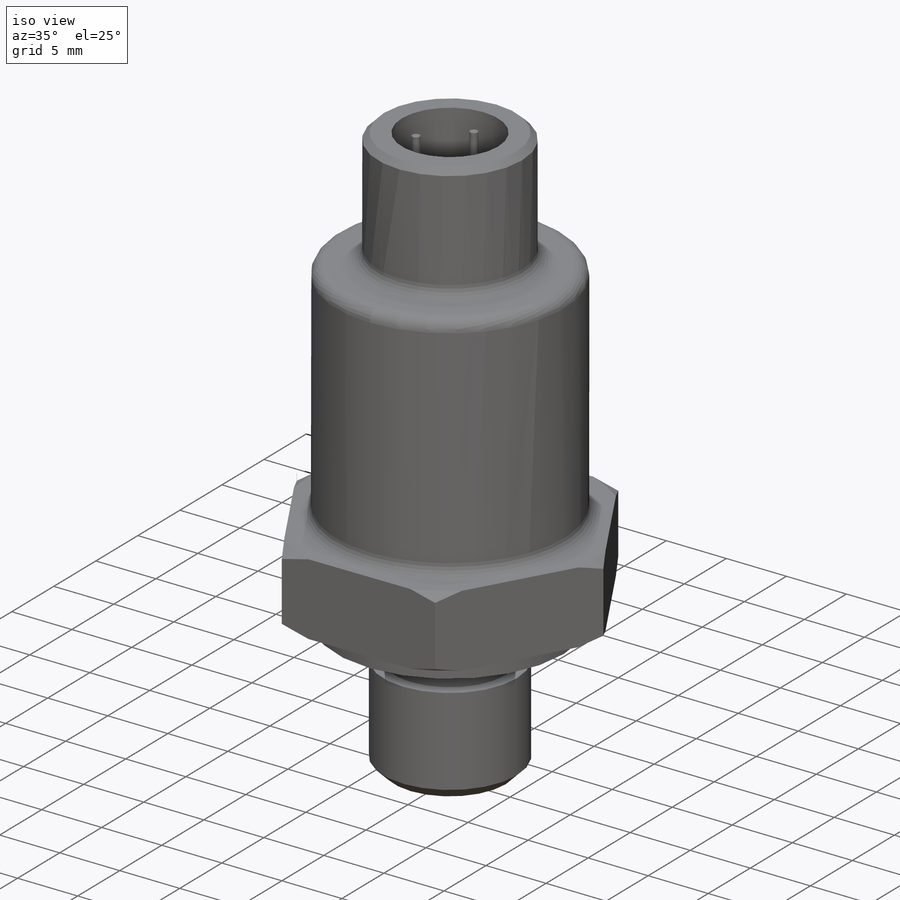
[diagram: iso view]
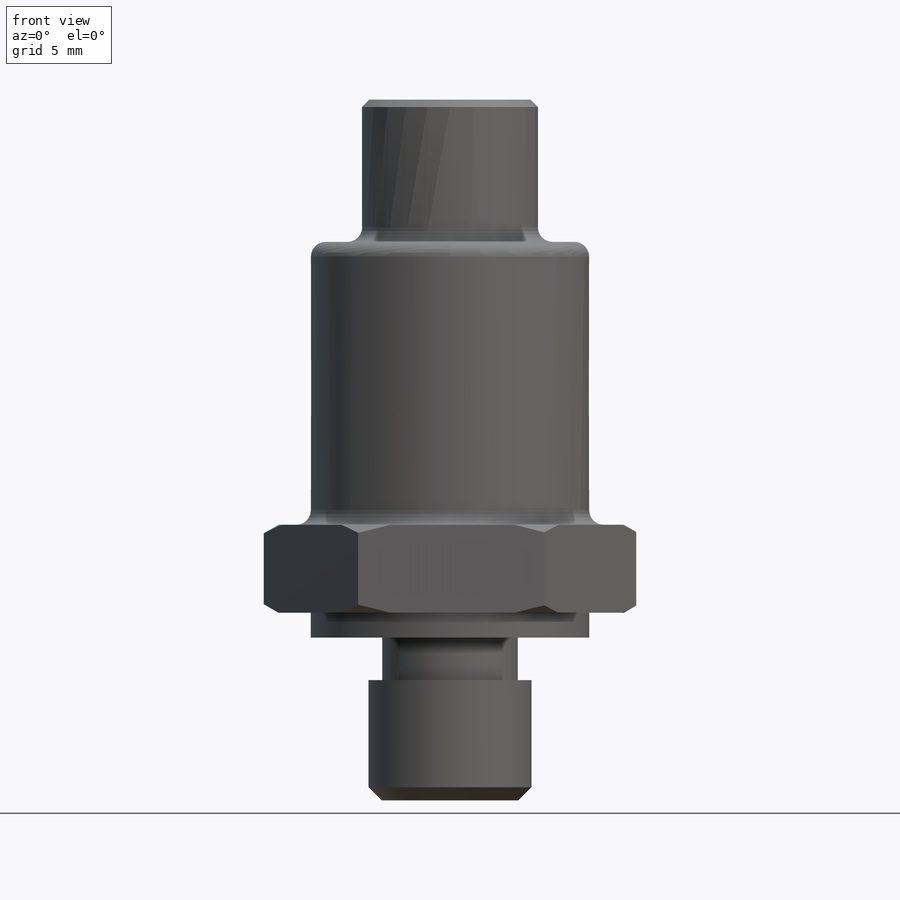
[diagram: front view]
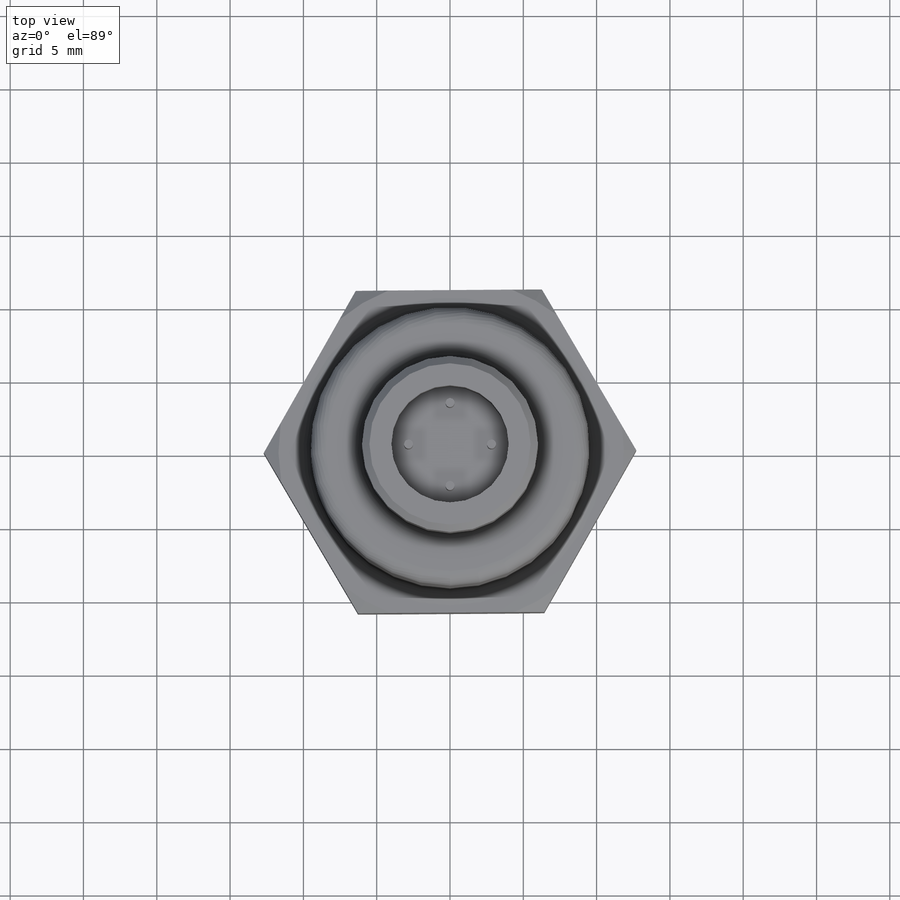
[diagram: top view]
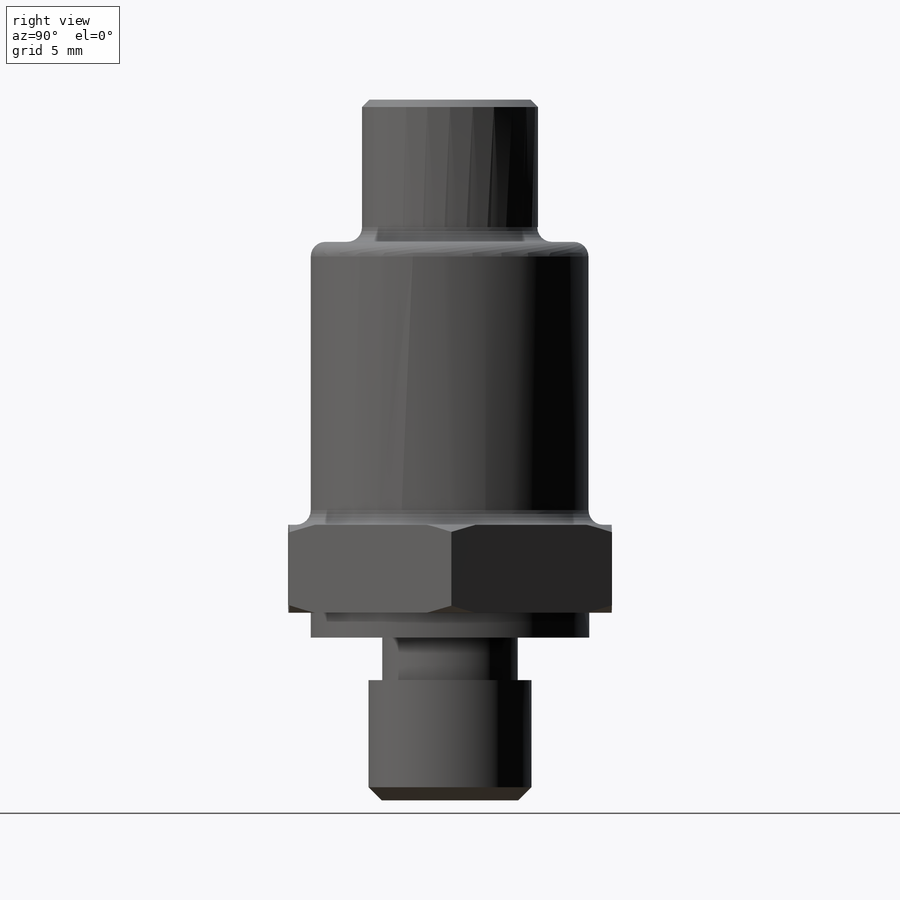
[diagram: right view]
SOLIDWORKS PART (.sldprt)
format: sldprt  version: not decoded by parser v0  size: 335,360 bytes
history: native  units: mm
features: sketch x11, extrude x7, thread x2, chamfer x2, fillet x2, cut_extrude x2, material x1, cut_revolve x1, pattern_circular x1 (+11 scaffold rows collapsed)
feature tree (40):
  scaffold x11  (default folders/planes/origin — collapsed)
  material  "Material <not specified>"
  sketch  "Sketch1"  dims[D1=11.1125mm]
  extrude  "Extrude1"  [1 undecoded]
  thread  "Cosmetic Thread1"  Diameter=9.9mm  [1 undecoded]
  sketch  "Sketch2"  dims[D1=9.2456mm]
  extrude  "Extrude2"  Depth=2.9mm
  sketch  "Sketch17"  dims[D1=19.0mm]
  extrude  "Extrude13"  Depth=1.7mm
  sketch  "Sketch4"  dims[D1=22.0mm]
  extrude  "Extrude4"  Depth=6mm
  sketch  "Sketch5"  dims[D1=19.0mm]
  extrude  "Extrude5"  Depth=19.3mm
  chamfer  "Chamfer1"  Distance=0.9mm Angle=45deg
  fillet  "Fillet1"  Radius=1mm
  sketch  "Sketch7"  dims[c1.D1=1.0mm c1.D2=~1.061338mm c2.D2=30.0deg]
  cut_revolve  "Cut-Revolve1"  Angle=360deg
  sketch  "Sketch13"  dims[D1=9.1186mm]
  sketch  "Sketch8"  dims[D1=3.35mm]
  cut_extrude  "Cut-Extrude1"  Depth=3.5mm
  sketch  "Sketch14"  dims[D1=12.0mm]
  extrude  "Extrude11"  [1 undecoded]
  thread  "Cosmetic Thread2"  Diameter=7.5mm  [1 undecoded]
  fillet  "Fillet2"  Radius=1mm
  chamfer  "Chamfer3"  Distance=0.5mm Angle=45deg
  sketch  "Sketch15"  dims[D1=8.0mm]
  cut_extrude  "Cut-Extrude2"  Depth=5mm
  sketch  "Sketch16"  dims[D1=0.6mm]
  extrude  "Extrude12"  Depth=4mm
  pattern_circular  "CirPattern1"  Count=4 Angle=360deg
decode coverage: 26 of 28 modeling features carry decoded parameters
note: ~ marks probable driven/reference dimensions
note: 4 parameter values undecoded
note: suppression state not decoded; provenance and decode notes live in map.json
